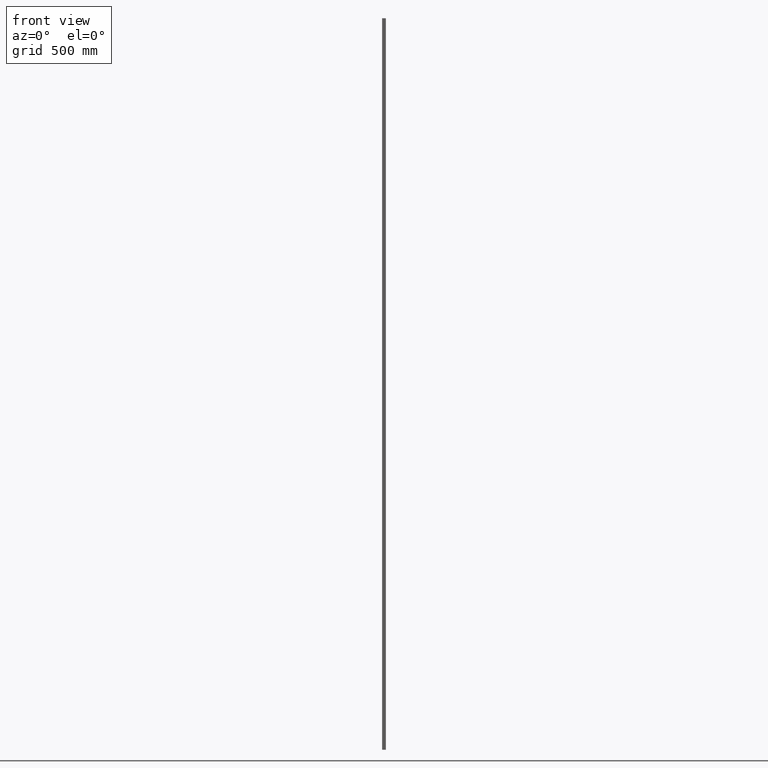
[diagram: clean part render]
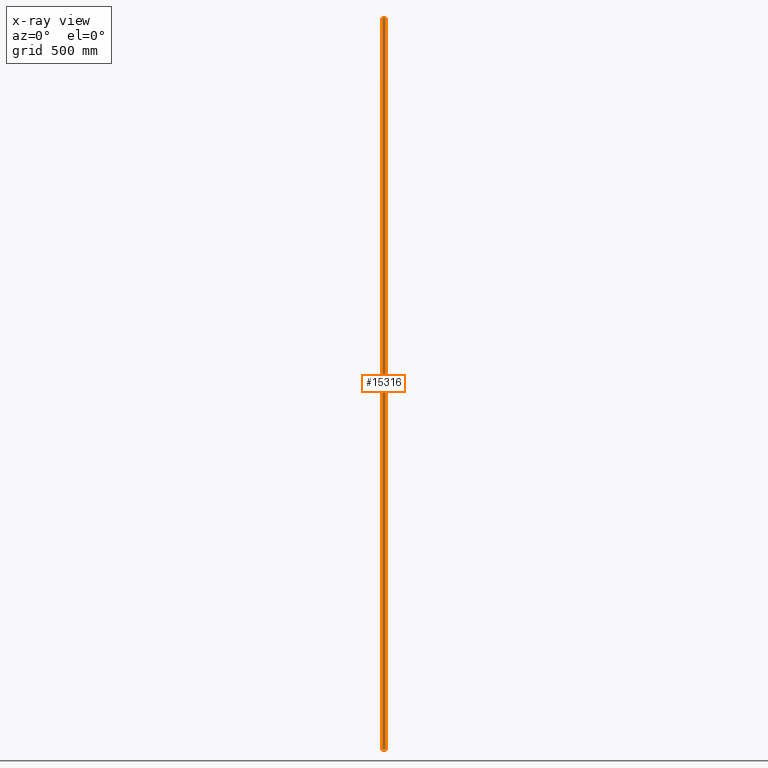
[diagram: x-ray — body ghosted, one internal face saturated and labeled with its STEP entity id]
A machine part, front view, then the same camera in x-ray: the body is ghosted and one INTERNAL B-rep face — a face not visible from any outside direction — is saturated and labeled: STEP entity #15316.
In plain terms, the highlighted planar face has unit normal (0, -1, 0).
Its self-contained STEP definition (entity closure, byte-faithful):
#402 = CARTESIAN_POINT ( 'NONE',  ( -5.549999999999998934, 6.000000000000000000, -1500.000000000000000 ) ) ;
#512 = CARTESIAN_POINT ( 'NONE',  ( 5.549999999999998934, 6.000000000000000000, 1500.000000000000000 ) ) ;
#1697 = EDGE_CURVE ( 'NONE', #10395, #15847, #7234, .T. ) ;
#1711 = LINE ( 'NONE', #4464, #17576 ) ;
#3374 = EDGE_CURVE ( 'NONE', #7538, #10395, #1711, .T. ) ;
#4104 = CARTESIAN_POINT ( 'NONE',  ( 5.549999999999998934, 6.000000000000000000, -1500.000000000000000 ) ) ;
#4125 = ORIENTED_EDGE ( 'NONE', *, *, #14894, .T. ) ;
#4464 = CARTESIAN_POINT ( 'NONE',  ( -5.549999999999998934, 6.000000000000000000, 1500.000000000000000 ) ) ;
#4607 = VERTEX_POINT ( 'NONE', #4104 ) ;
#4792 = EDGE_LOOP ( 'NONE', ( #4125, #12861, #15011, #10837 ) ) ;
#5030 = VECTOR ( 'NONE', #7961, 1000.000000000000000 ) ;
#5853 = CARTESIAN_POINT ( 'NONE',  ( -5.549999999999998934, 6.000000000000000000, 1500.000000000000000 ) ) ;
#5897 = LINE ( 'NONE', #12478, #6327 ) ;
#6327 = VECTOR ( 'NONE', #15388, 1000.000000000000000 ) ;
#7234 = LINE ( 'NONE', #15618, #17365 ) ;
#7538 = VERTEX_POINT ( 'NONE', #512 ) ;
#7588 = AXIS2_PLACEMENT_3D ( 'NONE', #18149, #15379, #9963 ) ;
#7902 = CARTESIAN_POINT ( 'NONE',  ( -5.549999999999998934, 6.000000000000000000, -1500.000000000000000 ) ) ;
#7961 = DIRECTION ( 'NONE',  ( -1.000000000000000000, -0.000000000000000000, -0.000000000000000000 ) ) ;
#9963 = DIRECTION ( 'NONE',  ( 0.000000000000000000, -0.000000000000000000, -1.000000000000000000 ) ) ;
#10395 = VERTEX_POINT ( 'NONE', #5853 ) ;
#10837 = ORIENTED_EDGE ( 'NONE', *, *, #17820, .T. ) ;
#11204 = FACE_OUTER_BOUND ( 'NONE', #4792, .T. ) ;
#12478 = CARTESIAN_POINT ( 'NONE',  ( 5.549999999999998934, 6.000000000000000000, 1500.000000000000000 ) ) ;
#12818 = DIRECTION ( 'NONE',  ( -1.000000000000000000, -0.000000000000000000, -0.000000000000000000 ) ) ;
#12861 = ORIENTED_EDGE ( 'NONE', *, *, #1697, .F. ) ;
#13875 = PLANE ( 'NONE',  #7588 ) ;
#14894 = EDGE_CURVE ( 'NONE', #4607, #15847, #16486, .T. ) ;
#15011 = ORIENTED_EDGE ( 'NONE', *, *, #3374, .F. ) ;
#15316 = ADVANCED_FACE ( 'NONE', ( #11204 ), #13875, .F. ) ;
#15379 = DIRECTION ( 'NONE',  ( 0.000000000000000000, -1.000000000000000000, 0.000000000000000000 ) ) ;
#15388 = DIRECTION ( 'NONE',  ( -0.000000000000000000, -0.000000000000000000, -1.000000000000000000 ) ) ;
#15618 = CARTESIAN_POINT ( 'NONE',  ( -5.549999999999998934, 6.000000000000000000, 1500.000000000000000 ) ) ;
#15847 = VERTEX_POINT ( 'NONE', #402 ) ;
#16486 = LINE ( 'NONE', #7902, #5030 ) ;
#16963 = DIRECTION ( 'NONE',  ( -0.000000000000000000, -0.000000000000000000, -1.000000000000000000 ) ) ;
#17365 = VECTOR ( 'NONE', #16963, 1000.000000000000000 ) ;
#17576 = VECTOR ( 'NONE', #12818, 1000.000000000000000 ) ;
#17820 = EDGE_CURVE ( 'NONE', #7538, #4607, #5897, .T. ) ;
#18149 = CARTESIAN_POINT ( 'NONE',  ( -5.549999999999998934, 6.000000000000000000, 1500.000000000000000 ) ) ;